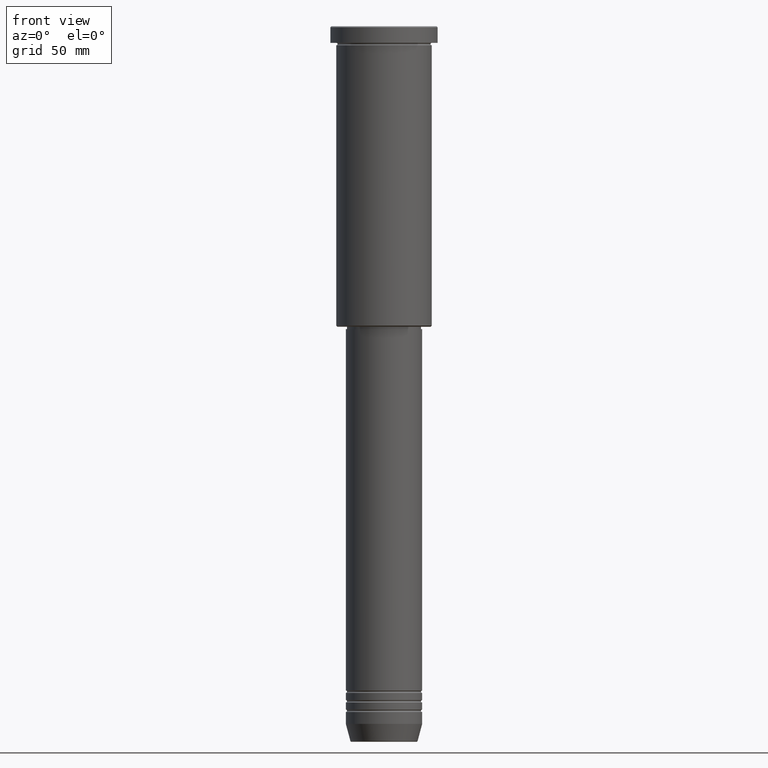
[diagram: clean part render]
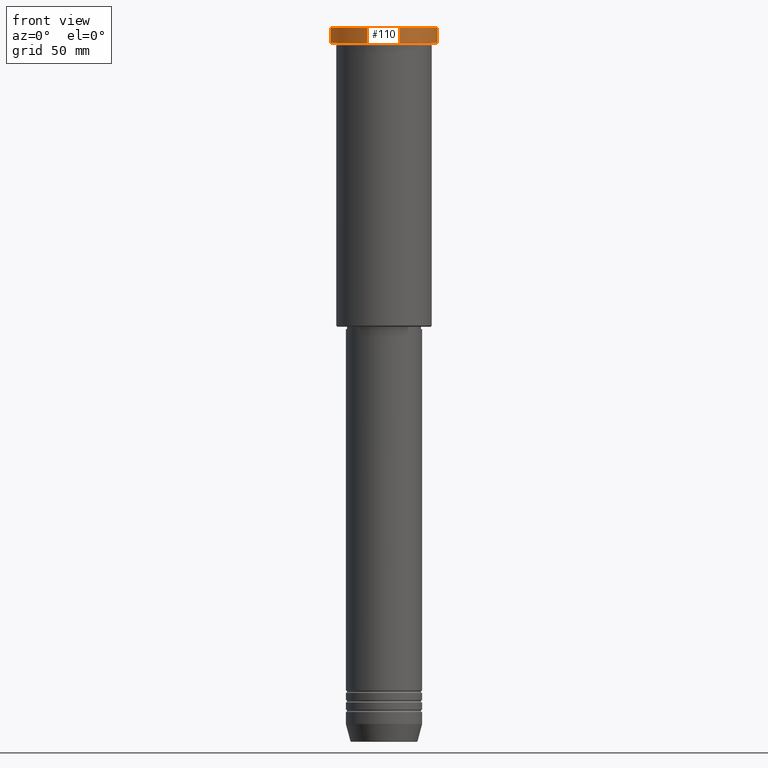
[diagram: same view with one face highlighted and labeled with its STEP entity id]
A machine part, front view. The second image highlights one B-rep face of the part: STEP entity #110.
In plain terms, the highlighted cylindrical surface (partial cylindrical patch) has radius 22.5 mm, axis along (-0, -0, 1).
Its self-contained STEP definition (entity closure, byte-faithful):
#67 = EDGE_CURVE ( 'NONE', #934, #741, #623, .T. ) ;
#76 = DIRECTION ( 'NONE',  ( -0.000000000000000000, -0.000000000000000000, 1.000000000000000000 ) ) ;
#87 = FACE_OUTER_BOUND ( 'NONE', #1166, .T. ) ;
#110 = ADVANCED_FACE ( 'NONE', ( #87 ), #194, .T. ) ;
#157 = VERTEX_POINT ( 'NONE', #832 ) ;
#173 = CIRCLE ( 'NONE', #384, 22.50000000000000000 ) ;
#194 = CYLINDRICAL_SURFACE ( 'NONE', #284, 22.50000000000000000 ) ;
#209 = EDGE_CURVE ( 'NONE', #547, #157, #229, .T. ) ;
#210 = DIRECTION ( 'NONE',  ( 1.000000000000000000, 0.000000000000000000, 0.000000000000000000 ) ) ;
#229 = LINE ( 'NONE', #392, #793 ) ;
#284 = AXIS2_PLACEMENT_3D ( 'NONE', #1173, #373, #351 ) ;
#299 = DIRECTION ( 'NONE',  ( 0.000000000000000000, 0.000000000000000000, -1.000000000000000000 ) ) ;
#351 = DIRECTION ( 'NONE',  ( 1.000000000000000000, 0.000000000000000000, 0.000000000000000000 ) ) ;
#369 = CARTESIAN_POINT ( 'NONE',  ( -22.50000000000000000, 2.755455298081544778E-15, -6.999999999999995559 ) ) ;
#373 = DIRECTION ( 'NONE',  ( -0.000000000000000000, -0.000000000000000000, 1.000000000000000000 ) ) ;
#384 = AXIS2_PLACEMENT_3D ( 'NONE', #555, #299, #935 ) ;
#392 = CARTESIAN_POINT ( 'NONE',  ( 22.50000000000000000, 0.000000000000000000, 0.000000000000000000 ) ) ;
#397 = DIRECTION ( 'NONE',  ( -0.000000000000000000, -0.000000000000000000, 1.000000000000000000 ) ) ;
#492 = CARTESIAN_POINT ( 'NONE',  ( 0.000000000000000000, 0.000000000000000000, -6.999999999999995559 ) ) ;
#547 = VERTEX_POINT ( 'NONE', #647 ) ;
#555 = CARTESIAN_POINT ( 'NONE',  ( 0.000000000000000000, 0.000000000000000000, -0.4999999999999935052 ) ) ;
#566 = AXIS2_PLACEMENT_3D ( 'NONE', #492, #1033, #210 ) ;
#623 = LINE ( 'NONE', #995, #921 ) ;
#625 = ORIENTED_EDGE ( 'NONE', *, *, #67, .F. ) ;
#647 = CARTESIAN_POINT ( 'NONE',  ( 22.50000000000000000, 0.000000000000000000, -6.999999999999995559 ) ) ;
#714 = EDGE_CURVE ( 'NONE', #934, #547, #869, .T. ) ;
#741 = VERTEX_POINT ( 'NONE', #752 ) ;
#752 = CARTESIAN_POINT ( 'NONE',  ( -22.50000000000000000, 2.755455298081544778E-15, -0.4999999999999935052 ) ) ;
#793 = VECTOR ( 'NONE', #397, 1000.000000000000000 ) ;
#824 = ORIENTED_EDGE ( 'NONE', *, *, #714, .T. ) ;
#832 = CARTESIAN_POINT ( 'NONE',  ( 22.50000000000000000, 0.000000000000000000, -0.4999999999999935052 ) ) ;
#869 = CIRCLE ( 'NONE', #566, 22.50000000000000000 ) ;
#921 = VECTOR ( 'NONE', #76, 1000.000000000000000 ) ;
#934 = VERTEX_POINT ( 'NONE', #369 ) ;
#935 = DIRECTION ( 'NONE',  ( 1.000000000000000000, 0.000000000000000000, 0.000000000000000000 ) ) ;
#995 = CARTESIAN_POINT ( 'NONE',  ( -22.50000000000000000, 2.755455298081544778E-15, 0.000000000000000000 ) ) ;
#1033 = DIRECTION ( 'NONE',  ( -0.000000000000000000, -0.000000000000000000, 1.000000000000000000 ) ) ;
#1063 = ORIENTED_EDGE ( 'NONE', *, *, #1139, .T. ) ;
#1139 = EDGE_CURVE ( 'NONE', #157, #741, #173, .T. ) ;
#1166 = EDGE_LOOP ( 'NONE', ( #625, #824, #1171, #1063 ) ) ;
#1171 = ORIENTED_EDGE ( 'NONE', *, *, #209, .T. ) ;
#1173 = CARTESIAN_POINT ( 'NONE',  ( 0.000000000000000000, 0.000000000000000000, 0.000000000000000000 ) ) ;